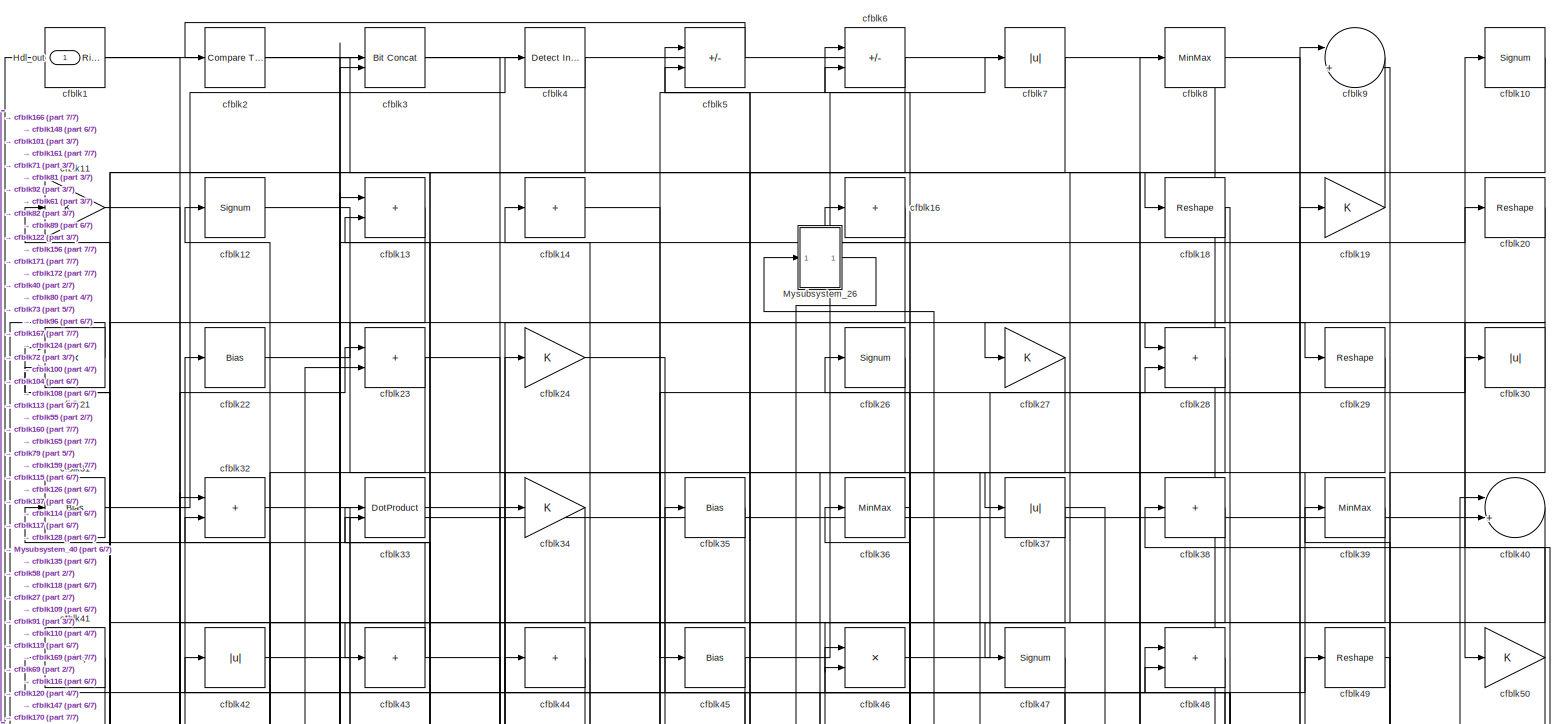
[diagram: root canvas - part 1/7, full width, top band]
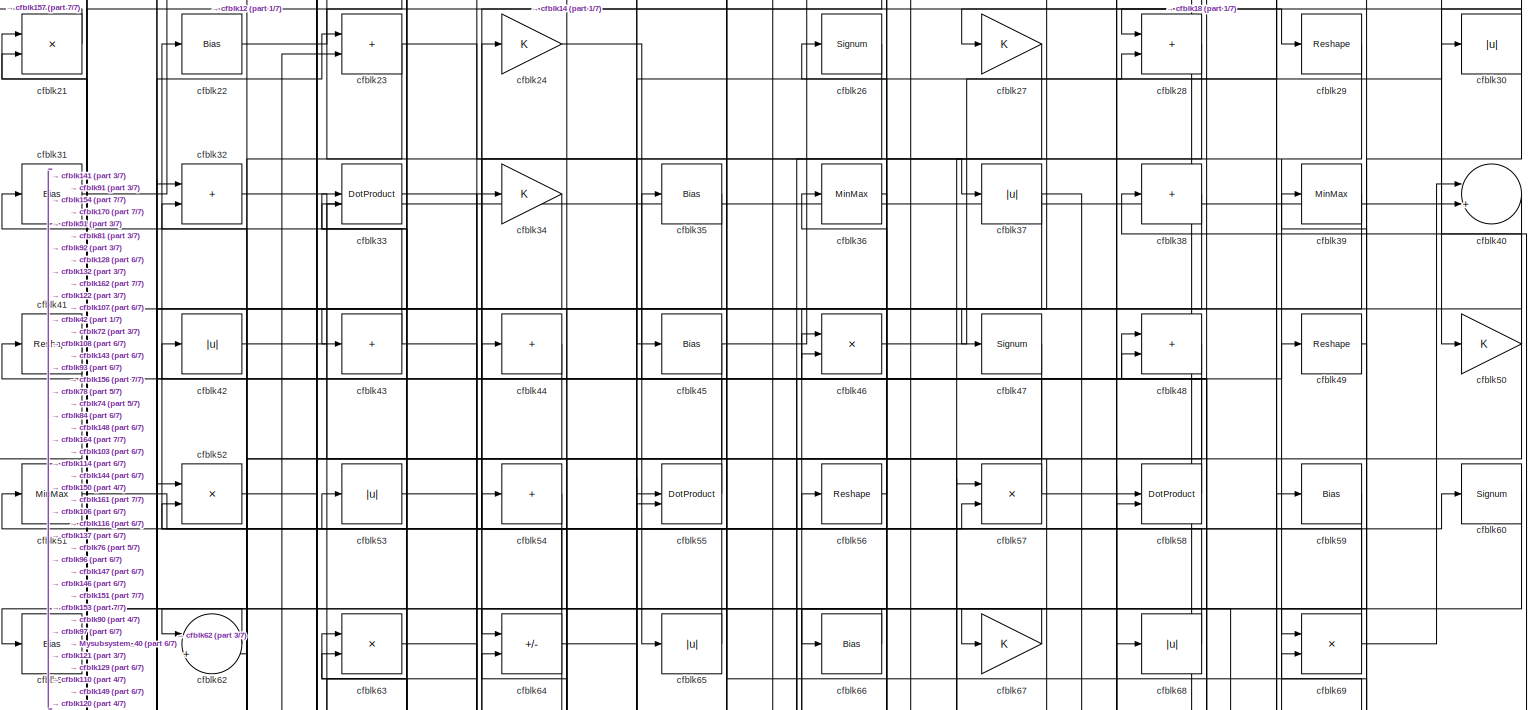
[diagram: root canvas - part 2/7, full width, top band]
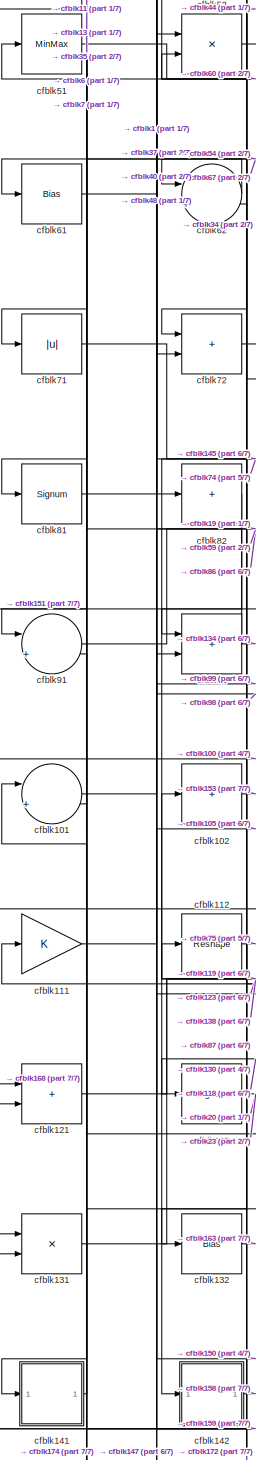
[diagram: root canvas - part 3/7, middle left region]
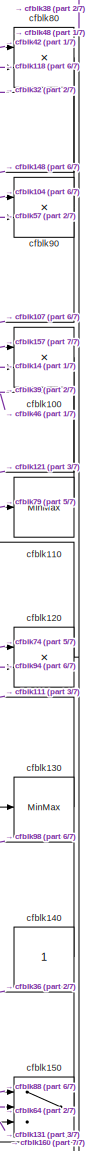
[diagram: root canvas - part 4/7, middle right region]
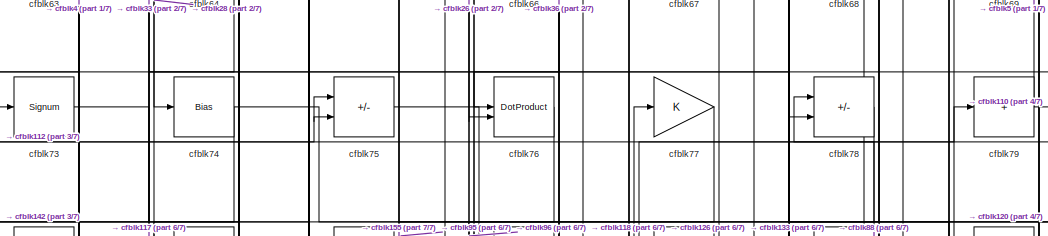
[diagram: root canvas - part 5/7, central region]
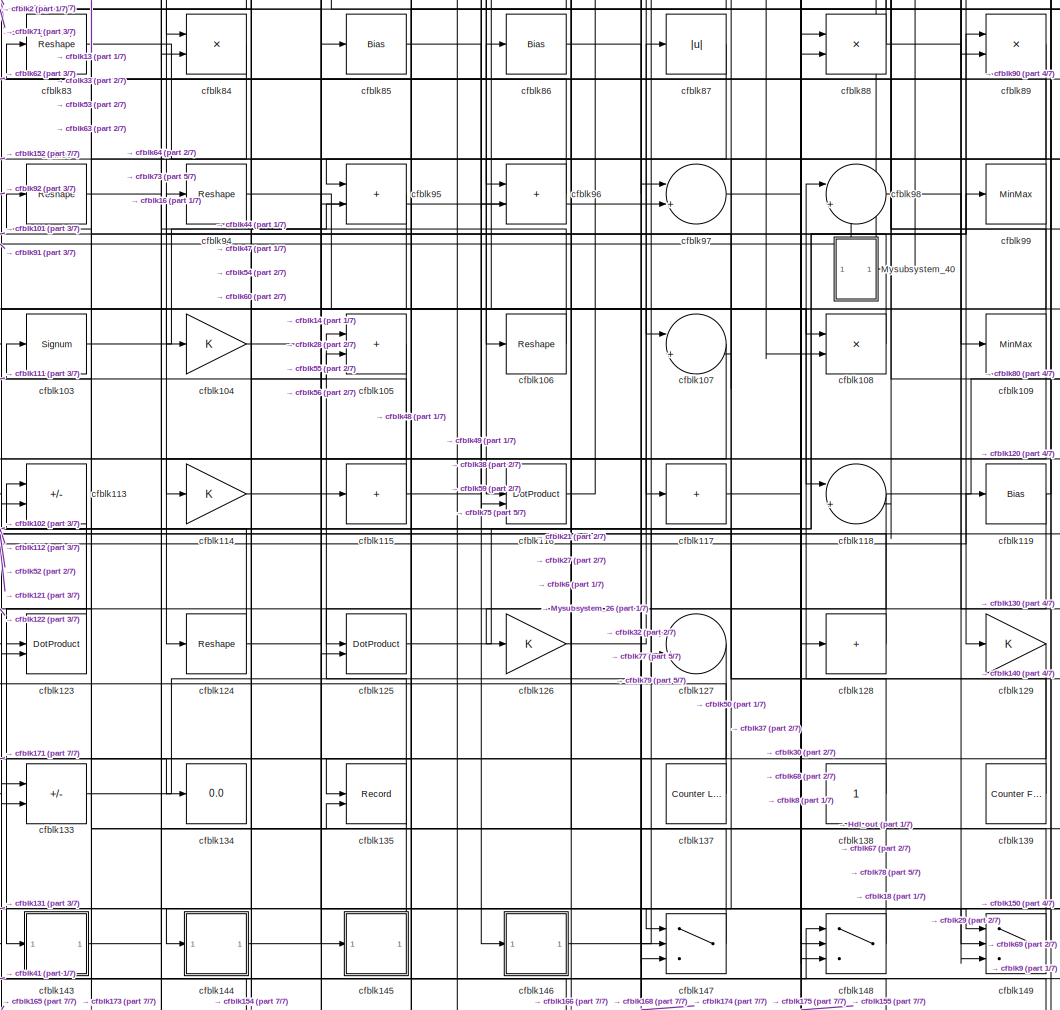
[diagram: root canvas - part 6/7, central region]
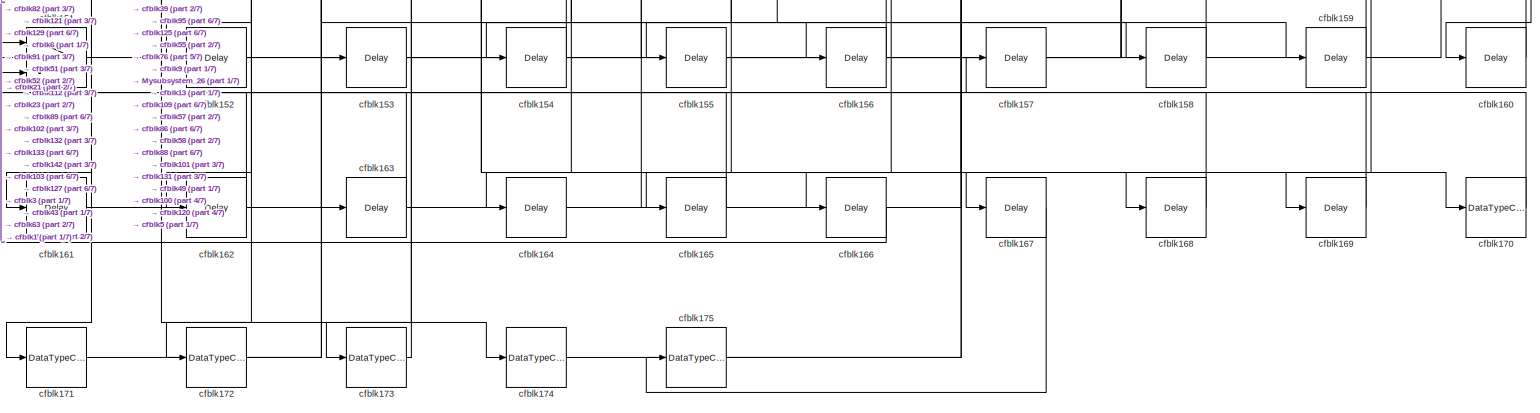
[diagram: root canvas - part 7/7, full width, bottom band]
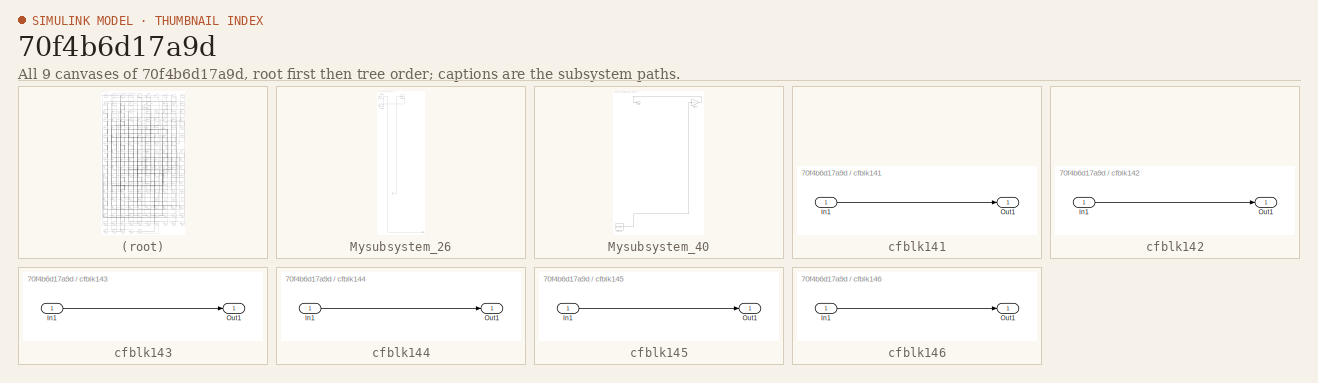
[diagram: thumbnail index - all 9 canvases of the model, root first then tree order]
MODEL slx_70f4b6d17a9d
KIND model
CONFIG AbsTol = auto
CONFIG EnableMultiTasking = off
CONFIG FixedStep = auto
CONFIG MaxStep = auto
CONFIG MinStep = auto
CONFIG RelTol = 1e-3
CONFIG SampleTimeConstraint = Unconstrained
CONFIG SolverName = VariableStepAuto
CONFIG StartTime = 0.0
CONFIG StopTime = 10.0
BLOCK [Outport] Hdl_out
  OutDataTypeStr = uint8
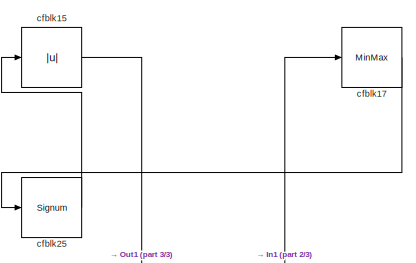
[diagram: Mysubsystem_26 - part 1/3, top left region]
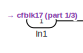
[diagram: Mysubsystem_26 - part 2/3, bottom left region]
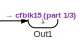
[diagram: Mysubsystem_26 - part 3/3, bottom right region]
BLOCK [SubSystem] Mysubsystem_26
  RTWFcnName = Mysubsystem_26
  RTWFcnNameOpts = User specified
  RTWFileNameOpts = Use function name
  RTWSystemCode = Reusable function
  TreatAsAtomicUnit = on
BLOCK [Inport] Mysubsystem_26/In1
BLOCK [Outport] Mysubsystem_26/Out1
BLOCK [Abs] Mysubsystem_26/cfblk15
  SaturateOnIntegerOverflow = off
BLOCK [MinMax] Mysubsystem_26/cfblk17
BLOCK [Signum] Mysubsystem_26/cfblk25
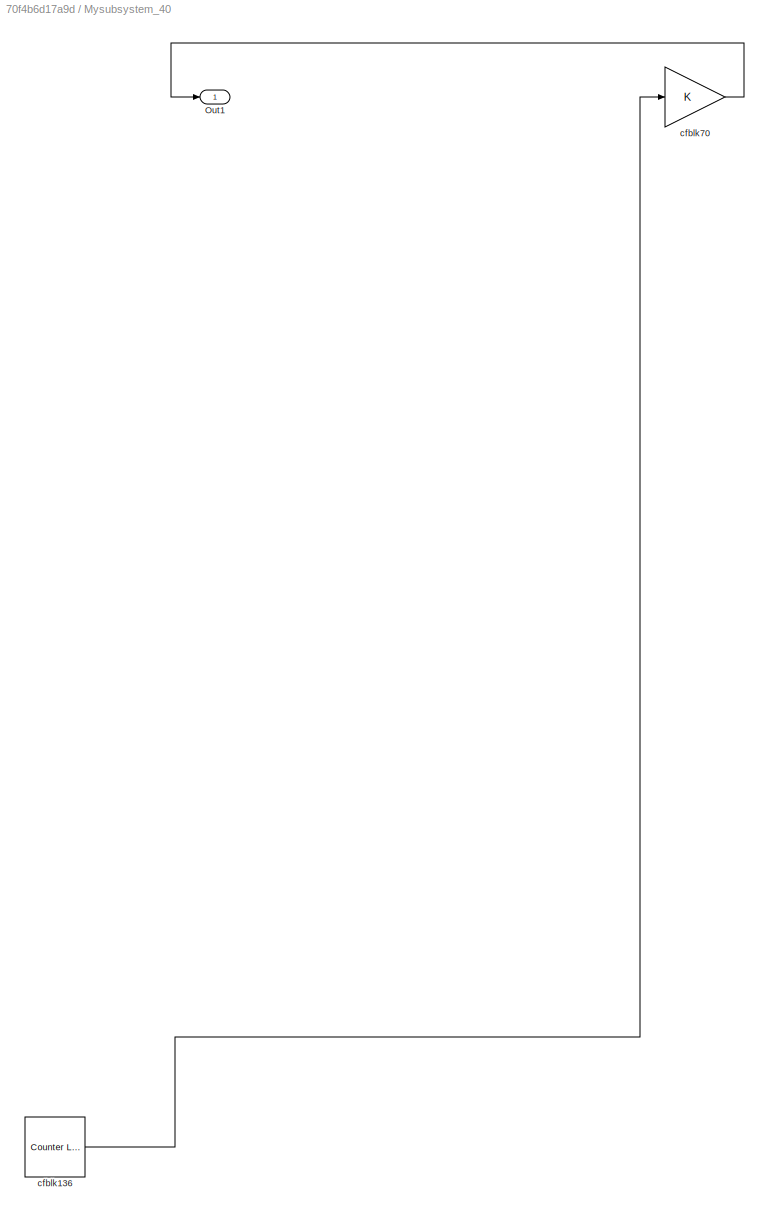
BLOCK [SubSystem] Mysubsystem_40
  RTWFcnName = Mysubsystem_40
  RTWFcnNameOpts = User specified
  RTWFileNameOpts = Use function name
  RTWSystemCode = Reusable function
  TreatAsAtomicUnit = on
BLOCK [Outport] Mysubsystem_40/Out1
BLOCK [Reference] Mysubsystem_40/cfblk136  REF=hdlsllib/Sources/Counter
Limited
  SourceBlock = hdlsllib/Sources/Counter\nLimited
  SourceType = Counter Limited
BLOCK [Gain] Mysubsystem_40/cfblk70
BLOCK [Reference] cfblk1  REF=hdlsllib/Logic and Bit
Operations/Detect Rise
Positive
  SourceBlock = hdlsllib/Logic and Bit\nOperations/Detect Rise\nPositive
  SourceType = Detect Rise Positive
BLOCK [Signum] cfblk10
BLOCK [Product] cfblk100
  Inputs = */
  OutDataTypeStr = uint8
  RndMeth = Zero
  SaturateOnIntegerOverflow = on
BLOCK [Sum] cfblk101
  Inputs = |++
  OutDataTypeStr = uint8
BLOCK [Sum] cfblk102
  IconShape = rectangular
  Inputs = +
  OutDataTypeStr = uint8
BLOCK [Signum] cfblk103
BLOCK [Gain] cfblk104
  OutDataTypeStr = uint8
BLOCK [Sum] cfblk105
  IconShape = rectangular
  OutDataTypeStr = uint8
BLOCK [Reshape] cfblk106
BLOCK [Sum] cfblk107
  Inputs = |++
  OutDataTypeStr = uint8
BLOCK [Product] cfblk108
  Inputs = */
  OutDataTypeStr = uint8
  RndMeth = Zero
  SaturateOnIntegerOverflow = on
BLOCK [MinMax] cfblk109
  OutDataTypeStr = uint8
BLOCK [Gain] cfblk11
  OutDataTypeStr = uint8
BLOCK [MinMax] cfblk110
  OutDataTypeStr = uint8
BLOCK [Gain] cfblk111
  OutDataTypeStr = uint8
BLOCK [Reshape] cfblk112
BLOCK [Sum] cfblk113
  IconShape = rectangular
  Inputs = +-
  OutDataTypeStr = uint8
BLOCK [Gain] cfblk114
  OutDataTypeStr = uint8
BLOCK [Sum] cfblk115
  IconShape = rectangular
  Inputs = +
  OutDataTypeStr = uint8
BLOCK [DotProduct] cfblk116
  OutDataTypeStr = uint8
BLOCK [Sum] cfblk117
  IconShape = rectangular
  Inputs = +
  OutDataTypeStr = uint8
BLOCK [Sum] cfblk118
  Inputs = |++
  OutDataTypeStr = uint8
BLOCK [Bias] cfblk119
  Bias = 0.0
  SaturateOnIntegerOverflow = off
BLOCK [Signum] cfblk12
BLOCK [Product] cfblk120
  Inputs = */
  OutDataTypeStr = uint8
  RndMeth = Zero
  SaturateOnIntegerOverflow = on
BLOCK [Sum] cfblk121
  IconShape = rectangular
  OutDataTypeStr = uint8
BLOCK [Signum] cfblk122
BLOCK [DotProduct] cfblk123
  OutDataTypeStr = uint8
BLOCK [Reshape] cfblk124
BLOCK [DotProduct] cfblk125
  OutDataTypeStr = uint8
BLOCK [Gain] cfblk126
  OutDataTypeStr = uint8
BLOCK [Sum] cfblk127
  Inputs = |++
  OutDataTypeStr = uint8
BLOCK [Sum] cfblk128
  IconShape = rectangular
  Inputs = +
  OutDataTypeStr = uint8
BLOCK [Gain] cfblk129
  OutDataTypeStr = uint8
BLOCK [Sum] cfblk13
  IconShape = rectangular
  OutDataTypeStr = uint8
BLOCK [MinMax] cfblk130
  OutDataTypeStr = uint8
BLOCK [Product] cfblk131
  Inputs = */
  OutDataTypeStr = uint8
  RndMeth = Zero
  SaturateOnIntegerOverflow = on
BLOCK [Bias] cfblk132
  Bias = 0.0
  SaturateOnIntegerOverflow = off
BLOCK [Sum] cfblk133
  IconShape = rectangular
  Inputs = +-
  OutDataTypeStr = uint8
BLOCK [Display] cfblk134
  Decimation = 1
BLOCK [Record] cfblk135
  CompatibilityTag = XY
  FileSettingsInternal = {"entries":[{"content":{"excelSettings":{"content":{},"type":"Streamout.ExcelSettings"}},"type":"Streamout.FileSettingStorage","uuid":""}],"packageUris":["http:\/\/schema.mathworks.com\/mf0\/streamout_blocks\/R2020a"],"version":"1.0"}
  Layout = [1 1]
  SignalsInternal = {"entries":[{"content":{"signals":[{"content":{"blockPath":[],"dimensions":[1],"domain":"","lineColor":"#a2142f","plots":[1],"port":1,"signalID":17942,"signalName":"cfblk48"},"type":"RecordBlkView.Signal","uuid":""},{"content":{"blockPath":[],"dimensions":[1],"domain":"","lineColor":"#139fff","plots":[1],"port":2,"signalID":17945,"signalName":"cfblk143"},"type":"RecordBlkView.Signal","uuid":""}]},...<+143ch>
  VisualizationBindings = {"xyplotplugin":{"info":[{"series":[{"bindingParametersList":[{"parameter":"X-Axis","signalID":17942,"signalName":"cfblk48"},{"parameter":"Y-Axis","signalID":17945,"signalName":"cfblk143"}],"seriesID":51680}],"subplotID":1}]}}
  st = -1
BLOCK [Reference] cfblk137  REF=hdlsllib/Sources/Counter
Limited
  SourceBlock = hdlsllib/Sources/Counter\nLimited
  SourceType = Counter Limited
BLOCK [Constant] cfblk138
  OutDataTypeStr = uint8
  SampleTime = -1
BLOCK [Reference] cfblk139  REF=hdlsllib/Sources/Counter
Free-Running
  SourceBlock = hdlsllib/Sources/Counter\nFree-Running
  SourceType = Counter Free-Running
BLOCK [Sum] cfblk14
  IconShape = rectangular
  Inputs = +
  OutDataTypeStr = uint8
BLOCK [Constant] cfblk140
  OutDataTypeStr = uint8
  SampleTime = -1
BLOCK [SubSystem] cfblk141
  LibrarySourceBlock = hdlsllib/Ports &\nSubsystems/Subsystem
BLOCK [Inport] cfblk141/In1
BLOCK [Outport] cfblk141/Out1
BLOCK [SubSystem] cfblk142
  LibrarySourceBlock = hdlsllib/Ports &\nSubsystems/Subsystem
BLOCK [Inport] cfblk142/In1
BLOCK [Outport] cfblk142/Out1
BLOCK [SubSystem] cfblk143
  LibrarySourceBlock = hdlsllib/Ports &\nSubsystems/Subsystem
BLOCK [Inport] cfblk143/In1
BLOCK [Outport] cfblk143/Out1
BLOCK [SubSystem] cfblk144
  LibrarySourceBlock = hdlsllib/Ports &\nSubsystems/Subsystem
BLOCK [Inport] cfblk144/In1
BLOCK [Outport] cfblk144/Out1
BLOCK [SubSystem] cfblk145
  LibrarySourceBlock = hdlsllib/Ports &\nSubsystems/Subsystem
BLOCK [Inport] cfblk145/In1
BLOCK [Outport] cfblk145/Out1
BLOCK [SubSystem] cfblk146
  LibrarySourceBlock = hdlsllib/Ports &\nSubsystems/Subsystem
BLOCK [Inport] cfblk146/In1
BLOCK [Outport] cfblk146/Out1
BLOCK [Switch] cfblk147
  InputSameDT = off
  OutDataTypeStr = uint8
  SaturateOnIntegerOverflow = off
BLOCK [Switch] cfblk148
  InputSameDT = off
  OutDataTypeStr = uint8
  SaturateOnIntegerOverflow = off
BLOCK [Switch] cfblk149
  InputSameDT = off
  OutDataTypeStr = uint8
  SaturateOnIntegerOverflow = off
BLOCK [Switch] cfblk150
  InputSameDT = off
  OutDataTypeStr = uint8
  SaturateOnIntegerOverflow = off
BLOCK [Switch] cfblk151
  InputSameDT = off
  OutDataTypeStr = uint8
  SaturateOnIntegerOverflow = off
BLOCK [Delay] cfblk152
  InputPortMap = u0
  SampleTime = 1
BLOCK [Delay] cfblk153
  InputPortMap = u0
  SampleTime = 1
BLOCK [Delay] cfblk154
  InputPortMap = u0
  SampleTime = 1
BLOCK [Delay] cfblk155
  InputPortMap = u0
  SampleTime = 1
BLOCK [Delay] cfblk156
  InputPortMap = u0
  SampleTime = 1
BLOCK [Delay] cfblk157
  InputPortMap = u0
  SampleTime = 1
BLOCK [Delay] cfblk158
  InputPortMap = u0
  SampleTime = 1
BLOCK [Delay] cfblk159
  InputPortMap = u0
  SampleTime = 1
BLOCK [Sum] cfblk16
  IconShape = rectangular
  Inputs = +
  OutDataTypeStr = uint8
BLOCK [Delay] cfblk160
  InputPortMap = u0
  SampleTime = 1
BLOCK [Delay] cfblk161
  InputPortMap = u0
  SampleTime = 1
BLOCK [Delay] cfblk162
  InputPortMap = u0
  SampleTime = 1
BLOCK [Delay] cfblk163
  InputPortMap = u0
  SampleTime = 1
BLOCK [Delay] cfblk164
  InputPortMap = u0
  SampleTime = 1
BLOCK [Delay] cfblk165
  InputPortMap = u0
  SampleTime = 1
BLOCK [Delay] cfblk166
  InputPortMap = u0
  SampleTime = 1
BLOCK [Delay] cfblk167
  InputPortMap = u0
  SampleTime = 1
BLOCK [Delay] cfblk168
  InputPortMap = u0
  SampleTime = 1
BLOCK [Delay] cfblk169
  InputPortMap = u0
  SampleTime = 1
BLOCK [DataTypeConversion] cfblk170
  OutDataTypeStr = uint8
  RndMeth = Floor
  SaturateOnIntegerOverflow = off
BLOCK [DataTypeConversion] cfblk171
  OutDataTypeStr = uint8
  RndMeth = Floor
  SaturateOnIntegerOverflow = off
BLOCK [DataTypeConversion] cfblk172
  OutDataTypeStr = uint8
  RndMeth = Floor
  SaturateOnIntegerOverflow = off
BLOCK [DataTypeConversion] cfblk173
  OutDataTypeStr = uint8
  RndMeth = Floor
  SaturateOnIntegerOverflow = off
BLOCK [DataTypeConversion] cfblk174
  OutDataTypeStr = uint8
  RndMeth = Floor
  SaturateOnIntegerOverflow = off
BLOCK [DataTypeConversion] cfblk175
  OutDataTypeStr = uint8
  RndMeth = Floor
  SaturateOnIntegerOverflow = off
BLOCK [Reshape] cfblk18
BLOCK [Gain] cfblk19
  OutDataTypeStr = uint8
BLOCK [Reference] cfblk2  REF=hdlsllib/Logic and Bit
Operations/Compare
To Constant
  SourceBlock = hdlsllib/Logic and Bit\nOperations/Compare\nTo Constant
  SourceType = Compare To Constant
BLOCK [Reshape] cfblk20
BLOCK [Product] cfblk21
  Inputs = */
  OutDataTypeStr = uint8
  RndMeth = Zero
  SaturateOnIntegerOverflow = on
BLOCK [Bias] cfblk22
  Bias = 0.0
  SaturateOnIntegerOverflow = off
BLOCK [Sum] cfblk23
  IconShape = rectangular
  OutDataTypeStr = uint8
BLOCK [Gain] cfblk24
  OutDataTypeStr = uint8
BLOCK [Signum] cfblk26
BLOCK [Gain] cfblk27
  OutDataTypeStr = uint8
BLOCK [Sum] cfblk28
  IconShape = rectangular
  OutDataTypeStr = uint8
BLOCK [Reshape] cfblk29
BLOCK [Reference] cfblk3  REF=hdlsllib/Logic and Bit
Operations/Bit Concat
  SourceBlock = hdlsllib/Logic and Bit\nOperations/Bit Concat
  SourceType = Bit Concat
BLOCK [Abs] cfblk30
  OutDataTypeStr = uint8
  SaturateOnIntegerOverflow = off
BLOCK [Bias] cfblk31
  Bias = 0.0
  SaturateOnIntegerOverflow = off
BLOCK [Sum] cfblk32
  IconShape = rectangular
  OutDataTypeStr = uint8
BLOCK [DotProduct] cfblk33
  OutDataTypeStr = uint8
BLOCK [Gain] cfblk34
  OutDataTypeStr = uint8
BLOCK [Bias] cfblk35
  Bias = 0.0
  SaturateOnIntegerOverflow = off
BLOCK [MinMax] cfblk36
  OutDataTypeStr = uint8
BLOCK [Abs] cfblk37
  OutDataTypeStr = uint8
  SaturateOnIntegerOverflow = off
BLOCK [Sum] cfblk38
  IconShape = rectangular
  Inputs = +
  OutDataTypeStr = uint8
BLOCK [MinMax] cfblk39
  OutDataTypeStr = uint8
BLOCK [Reference] cfblk4  REF=simulink/Logic and Bit
Operations/Detect
Increase
  LibrarySourceBlock = hdlsllib/Logic and Bit\nOperations/Detect\nIncrease
  SourceBlock = simulink/Logic and Bit\nOperations/Detect\nIncrease
  SourceType = Detect Increase
BLOCK [Sum] cfblk40
  Inputs = |++
  OutDataTypeStr = uint8
BLOCK [Reshape] cfblk41
BLOCK [Abs] cfblk42
  OutDataTypeStr = uint8
  SaturateOnIntegerOverflow = off
BLOCK [Sum] cfblk43
  IconShape = rectangular
  Inputs = +
  OutDataTypeStr = uint8
BLOCK [Sum] cfblk44
  IconShape = rectangular
  Inputs = +
  OutDataTypeStr = uint8
BLOCK [Bias] cfblk45
  Bias = 0.0
  SaturateOnIntegerOverflow = off
BLOCK [Product] cfblk46
  Inputs = */
  OutDataTypeStr = uint8
  RndMeth = Zero
  SaturateOnIntegerOverflow = on
BLOCK [Signum] cfblk47
BLOCK [Sum] cfblk48
  IconShape = rectangular
  OutDataTypeStr = uint8
BLOCK [Reshape] cfblk49
BLOCK [Sum] cfblk5
  IconShape = rectangular
  Inputs = +-
  OutDataTypeStr = uint8
BLOCK [Gain] cfblk50
  OutDataTypeStr = uint8
BLOCK [MinMax] cfblk51
  OutDataTypeStr = uint8
BLOCK [Product] cfblk52
  Inputs = */
  OutDataTypeStr = uint8
  RndMeth = Zero
  SaturateOnIntegerOverflow = on
BLOCK [Abs] cfblk53
  OutDataTypeStr = uint8
  SaturateOnIntegerOverflow = off
BLOCK [Sum] cfblk54
  IconShape = rectangular
  Inputs = +
  OutDataTypeStr = uint8
BLOCK [DotProduct] cfblk55
  OutDataTypeStr = uint8
BLOCK [Reshape] cfblk56
BLOCK [Product] cfblk57
  Inputs = */
  OutDataTypeStr = uint8
  RndMeth = Zero
  SaturateOnIntegerOverflow = on
BLOCK [DotProduct] cfblk58
  OutDataTypeStr = uint8
BLOCK [Bias] cfblk59
  Bias = 0.0
  SaturateOnIntegerOverflow = off
BLOCK [Sum] cfblk6
  IconShape = rectangular
  Inputs = +-
  OutDataTypeStr = uint8
BLOCK [Signum] cfblk60
BLOCK [Bias] cfblk61
  Bias = 0.0
  SaturateOnIntegerOverflow = off
BLOCK [Sum] cfblk62
  Inputs = |++
  OutDataTypeStr = uint8
BLOCK [Product] cfblk63
  Inputs = */
  OutDataTypeStr = uint8
  RndMeth = Zero
  SaturateOnIntegerOverflow = on
BLOCK [Sum] cfblk64
  IconShape = rectangular
  Inputs = +-
  OutDataTypeStr = uint8
BLOCK [Abs] cfblk65
  OutDataTypeStr = uint8
  SaturateOnIntegerOverflow = off
BLOCK [Bias] cfblk66
  Bias = 0.0
  SaturateOnIntegerOverflow = off
BLOCK [Gain] cfblk67
  OutDataTypeStr = uint8
BLOCK [Abs] cfblk68
  OutDataTypeStr = uint8
  SaturateOnIntegerOverflow = off
BLOCK [Product] cfblk69
  Inputs = */
  OutDataTypeStr = uint8
  RndMeth = Zero
  SaturateOnIntegerOverflow = on
BLOCK [Abs] cfblk7
  OutDataTypeStr = uint8
  SaturateOnIntegerOverflow = off
BLOCK [Abs] cfblk71
  OutDataTypeStr = uint8
  SaturateOnIntegerOverflow = off
BLOCK [Sum] cfblk72
  IconShape = rectangular
  OutDataTypeStr = uint8
BLOCK [Signum] cfblk73
BLOCK [Bias] cfblk74
  Bias = 0.0
  SaturateOnIntegerOverflow = off
BLOCK [Sum] cfblk75
  IconShape = rectangular
  Inputs = +-
  OutDataTypeStr = uint8
BLOCK [DotProduct] cfblk76
  OutDataTypeStr = uint8
BLOCK [Gain] cfblk77
  OutDataTypeStr = uint8
BLOCK [Sum] cfblk78
  IconShape = rectangular
  Inputs = +-
  OutDataTypeStr = uint8
BLOCK [Sum] cfblk79
  IconShape = rectangular
  Inputs = +
  OutDataTypeStr = uint8
BLOCK [MinMax] cfblk8
  OutDataTypeStr = uint8
BLOCK [Product] cfblk80
  Inputs = */
  OutDataTypeStr = uint8
  RndMeth = Zero
  SaturateOnIntegerOverflow = on
BLOCK [Signum] cfblk81
BLOCK [Sum] cfblk82
  IconShape = rectangular
  Inputs = +
  OutDataTypeStr = uint8
BLOCK [Reshape] cfblk83
BLOCK [Product] cfblk84
  Inputs = */
  OutDataTypeStr = uint8
  RndMeth = Zero
  SaturateOnIntegerOverflow = on
BLOCK [Bias] cfblk85
  Bias = 0.0
  SaturateOnIntegerOverflow = off
BLOCK [Bias] cfblk86
  Bias = 0.0
  SaturateOnIntegerOverflow = off
BLOCK [Abs] cfblk87
  OutDataTypeStr = uint8
  SaturateOnIntegerOverflow = off
BLOCK [Product] cfblk88
  Inputs = */
  OutDataTypeStr = uint8
  RndMeth = Zero
  SaturateOnIntegerOverflow = on
BLOCK [Product] cfblk89
  Inputs = */
  OutDataTypeStr = uint8
  RndMeth = Zero
  SaturateOnIntegerOverflow = on
BLOCK [Sum] cfblk9
  Inputs = |++
  OutDataTypeStr = uint8
BLOCK [Product] cfblk90
  Inputs = */
  OutDataTypeStr = uint8
  RndMeth = Zero
  SaturateOnIntegerOverflow = on
BLOCK [Sum] cfblk91
  Inputs = |++
  OutDataTypeStr = uint8
BLOCK [Sum] cfblk92
  IconShape = rectangular
  OutDataTypeStr = uint8
BLOCK [Reshape] cfblk93
BLOCK [Reshape] cfblk94
BLOCK [Sum] cfblk95
  IconShape = rectangular
  OutDataTypeStr = uint8
BLOCK [Sum] cfblk96
  IconShape = rectangular
  OutDataTypeStr = uint8
BLOCK [Sum] cfblk97
  Inputs = |++
  OutDataTypeStr = uint8
BLOCK [Sum] cfblk98
  Inputs = |++
  OutDataTypeStr = uint8
BLOCK [MinMax] cfblk99
  OutDataTypeStr = uint8
LINE Mysubsystem_26/In1:1 -> Mysubsystem_26/cfblk17:1
LINE Mysubsystem_26/cfblk15:1 -> Mysubsystem_26/Out1:1
LINE Mysubsystem_26/cfblk17:1 -> Mysubsystem_26/cfblk25:1
LINE Mysubsystem_26/cfblk25:1 -> Mysubsystem_26/cfblk15:1
LINE Mysubsystem_26:1 -> cfblk159:1
LINE Mysubsystem_40/cfblk136:1 -> Mysubsystem_40/cfblk70:1
LINE Mysubsystem_40/cfblk70:1 -> Mysubsystem_40/Out1:1
NET Mysubsystem_40:1 -> Hdl_out:1, cfblk67:1
LINE cfblk100:1 -> cfblk121:2
LINE cfblk101:1 -> cfblk99:1
LINE cfblk102:1 -> cfblk153:1
LINE cfblk103:1 -> cfblk55:2
NET cfblk104:1 -> cfblk6:2, cfblk90:1
LINE cfblk105:1 -> cfblk131:2
LINE cfblk106:1 -> cfblk54:1
NET cfblk107:1 -> cfblk123:2, cfblk125:1
LINE cfblk108:1 -> cfblk63:2
NET cfblk109:1 -> cfblk166:1, cfblk41:1
LINE cfblk10:1 -> cfblk47:1
NET cfblk110:1 -> cfblk39:1, cfblk46:1, cfblk46:2
LINE cfblk111:1 -> cfblk105:2
NET cfblk112:1 -> cfblk147:3, cfblk172:1, cfblk75:1, cfblk75:2
LINE cfblk113:1 -> cfblk143:1
NET cfblk114:1 -> cfblk149:3, cfblk56:1
NET cfblk115:1 -> cfblk44:1, cfblk49:1
LINE cfblk116:1 -> Mysubsystem_26:1
LINE cfblk117:1 -> cfblk8:1
NET cfblk118:1 -> cfblk122:1, cfblk80:2
NET cfblk119:1 -> cfblk126:1, cfblk9:2
LINE cfblk11:1 -> cfblk89:2
NET cfblk120:1 -> cfblk160:1, cfblk38:1, cfblk48:2
NET cfblk121:1 -> cfblk119:1, cfblk59:1, cfblk86:1
NET cfblk122:1 -> cfblk20:1, cfblk23:2
LINE cfblk123:1 -> cfblk102:1
NET cfblk124:1 -> cfblk83:1, cfblk97:2
LINE cfblk125:1 -> cfblk89:1
NET cfblk126:1 -> cfblk16:1, cfblk77:1
LINE cfblk127:1 -> cfblk173:1
LINE cfblk128:1 -> cfblk52:2
LINE cfblk129:1 -> cfblk171:1
LINE cfblk12:1 -> cfblk45:1
LINE cfblk130:1 -> cfblk111:1
NET cfblk131:1 -> cfblk150:3, cfblk87:1
LINE cfblk132:1 -> cfblk163:1
LINE cfblk133:1 -> cfblk79:1
NET cfblk137:1 -> cfblk21:2, cfblk6:1
LINE cfblk138:1 -> cfblk112:1
LINE cfblk139:1 -> cfblk94:1
LINE cfblk13:1 -> cfblk71:1
LINE cfblk140:1 -> cfblk98:1
LINE cfblk141/In1:1 -> cfblk141/Out1:1
LINE cfblk141:1 -> cfblk51:1
LINE cfblk142/In1:1 -> cfblk142/Out1:1
LINE cfblk142:1 -> cfblk158:1
LINE cfblk143/In1:1 -> cfblk143/Out1:1
NET cfblk143:1 -> cfblk135:2, cfblk33:1
LINE cfblk144/In1:1 -> cfblk144/Out1:1
NET cfblk144:1 -> cfblk28:2, cfblk85:1
LINE cfblk145/In1:1 -> cfblk145/Out1:1
LINE cfblk145:1 -> cfblk105:1
LINE cfblk146/In1:1 -> cfblk146/Out1:1
NET cfblk146:1 -> cfblk149:2, cfblk68:1
NET cfblk147:1 -> cfblk113:1, cfblk93:1
LINE cfblk148:1 -> cfblk64:2
NET cfblk149:1 -> cfblk63:1, cfblk69:2
NET cfblk14:1 -> cfblk100:2, cfblk108:1
LINE cfblk150:1 -> cfblk36:1
LINE cfblk151:1 -> cfblk58:1
LINE cfblk152:1 -> cfblk125:2
LINE cfblk153:1 -> cfblk58:2
LINE cfblk154:1 -> cfblk32:1
LINE cfblk155:1 -> cfblk88:1
LINE cfblk156:1 -> cfblk13:1
LINE cfblk157:1 -> cfblk100:1
LINE cfblk158:1 -> cfblk101:1
LINE cfblk159:1 -> cfblk131:1
LINE cfblk160:1 -> cfblk5:2
LINE cfblk161:1 -> cfblk55:1
LINE cfblk162:1 -> cfblk151:1
LINE cfblk163:1 -> cfblk91:2
LINE cfblk164:1 -> cfblk57:1
LINE cfblk165:1 -> cfblk133:1
LINE cfblk166:1 -> cfblk1:1
LINE cfblk167:1 -> cfblk175:1
LINE cfblk168:1 -> cfblk121:1
LINE cfblk169:1 -> cfblk151:2
LINE cfblk16:1 -> cfblk124:1
LINE cfblk170:1 -> cfblk52:1
LINE cfblk171:1 -> cfblk3:1
LINE cfblk172:1 -> cfblk3:2
LINE cfblk173:1 -> cfblk103:1
LINE cfblk174:1 -> cfblk127:1
LINE cfblk175:1 -> cfblk127:2
NET cfblk18:1 -> cfblk118:2, cfblk27:1
LINE cfblk19:1 -> cfblk18:1
LINE cfblk1:1 -> cfblk82:1
LINE cfblk20:1 -> cfblk50:1
LINE cfblk21:1 -> cfblk157:1
LINE cfblk22:1 -> cfblk29:1
NET cfblk23:1 -> cfblk162:1, cfblk37:1
LINE cfblk24:1 -> cfblk65:1
LINE cfblk26:1 -> cfblk76:2
LINE cfblk27:1 -> cfblk96:1
LINE cfblk28:1 -> cfblk74:1
NET cfblk29:1 -> cfblk129:1, cfblk147:2
NET cfblk2:1 -> cfblk104:1, cfblk128:1
NET cfblk30:1 -> cfblk28:1, cfblk69:1
LINE cfblk31:1 -> cfblk4:1
LINE cfblk32:1 -> cfblk97:1
LINE cfblk33:1 -> cfblk78:2
LINE cfblk34:1 -> cfblk132:1
LINE cfblk35:1 -> cfblk141:1
LINE cfblk36:1 -> cfblk76:1
NET cfblk37:1 -> cfblk108:2, cfblk72:2
LINE cfblk38:1 -> cfblk116:1
LINE cfblk39:1 -> cfblk164:1
LINE cfblk3:1 -> cfblk170:1
NET cfblk40:1 -> cfblk66:1, cfblk92:2
LINE cfblk41:1 -> cfblk148:1
NET cfblk42:1 -> cfblk40:2, cfblk80:1
NET cfblk43:1 -> cfblk167:1, cfblk31:1
LINE cfblk44:1 -> cfblk72:1
NET cfblk45:1 -> cfblk113:2, cfblk7:1
LINE cfblk46:1 -> cfblk9:1
LINE cfblk47:1 -> cfblk114:1
NET cfblk48:1 -> cfblk135:1, cfblk92:1
LINE cfblk49:1 -> cfblk169:1
LINE cfblk4:1 -> cfblk73:1
NET cfblk50:1 -> cfblk10:1, cfblk116:2, cfblk147:1
NET cfblk51:1 -> cfblk174:1, cfblk60:1
LINE cfblk52:1 -> cfblk107:1
LINE cfblk53:1 -> cfblk57:2
LINE cfblk54:1 -> cfblk91:1
LINE cfblk55:1 -> cfblk12:1
LINE cfblk56:1 -> cfblk26:1
NET cfblk57:1 -> cfblk35:1, cfblk90:2
LINE cfblk58:1 -> cfblk14:1
LINE cfblk59:1 -> cfblk106:1
LINE cfblk5:1 -> cfblk2:1
LINE cfblk60:1 -> cfblk84:1
LINE cfblk61:1 -> cfblk48:1
LINE cfblk62:1 -> cfblk61:1
LINE cfblk63:1 -> cfblk156:1
NET cfblk64:1 -> cfblk150:2, cfblk24:1, cfblk84:2
LINE cfblk65:1 -> cfblk21:1
LINE cfblk66:1 -> cfblk64:1
LINE cfblk67:1 -> cfblk62:1
LINE cfblk68:1 -> cfblk22:1
NET cfblk69:1 -> cfblk40:1, cfblk42:1
NET cfblk6:1 -> cfblk161:1, cfblk81:1
LINE cfblk71:1 -> cfblk145:1
LINE cfblk72:1 -> cfblk34:1
LINE cfblk73:1 -> cfblk117:1
NET cfblk74:1 -> cfblk120:1, cfblk142:1
LINE cfblk75:1 -> cfblk118:1
LINE cfblk76:1 -> cfblk155:1
LINE cfblk77:1 -> cfblk96:2
LINE cfblk78:1 -> cfblk95:1
NET cfblk79:1 -> cfblk110:1, cfblk5:1
NET cfblk7:1 -> cfblk101:2, cfblk43:1
LINE cfblk80:1 -> cfblk148:2
LINE cfblk81:1 -> cfblk23:1
LINE cfblk82:1 -> cfblk151:3
LINE cfblk83:1 -> cfblk115:1
LINE cfblk84:1 -> cfblk123:1
LINE cfblk85:1 -> cfblk146:1
LINE cfblk86:1 -> cfblk168:1
LINE cfblk87:1 -> cfblk144:1
NET cfblk88:1 -> cfblk150:1, cfblk78:1
LINE cfblk89:1 -> cfblk152:1
LINE cfblk8:1 -> cfblk109:1
NET cfblk90:1 -> cfblk107:2, cfblk32:2
NET cfblk91:1 -> cfblk19:1, cfblk98:2
NET cfblk92:1 -> cfblk11:1, cfblk134:1
NET cfblk93:1 -> cfblk33:2, cfblk53:1, cfblk95:2
NET cfblk94:1 -> cfblk120:2, cfblk148:3
LINE cfblk95:1 -> cfblk154:1
LINE cfblk96:1 -> cfblk13:2
NET cfblk97:1 -> cfblk149:1, cfblk30:1, cfblk88:2
LINE cfblk98:1 -> cfblk130:1
NET cfblk99:1 -> cfblk133:2, cfblk62:2
LINE cfblk9:1 -> cfblk165:1
note: NET lines group one-source signal fan-out (src -> all destinations, sorted); 1:1 wires keep LINE
